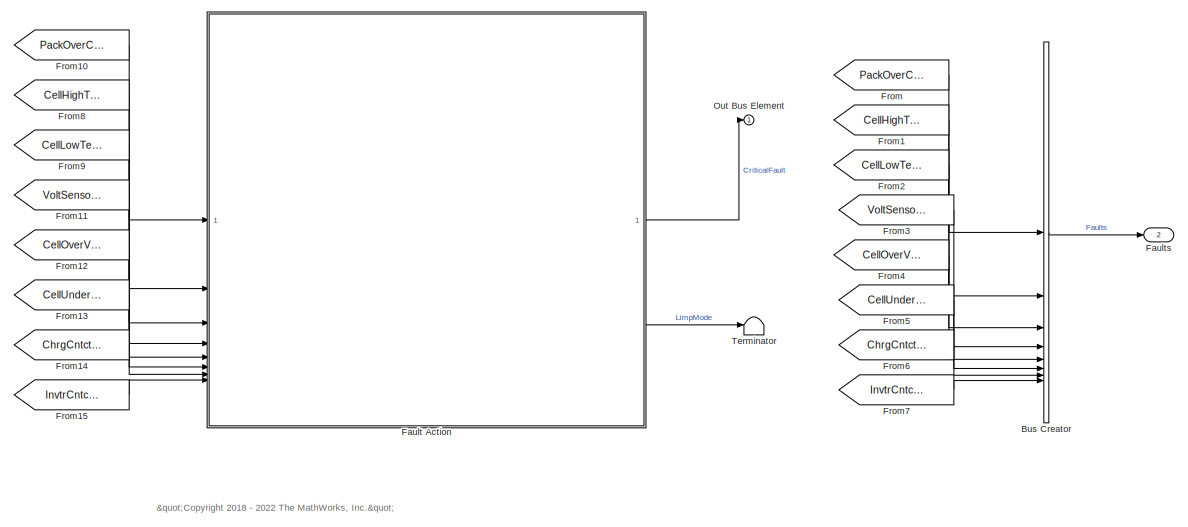
[diagram: root canvas - part 1/2, middle right region]
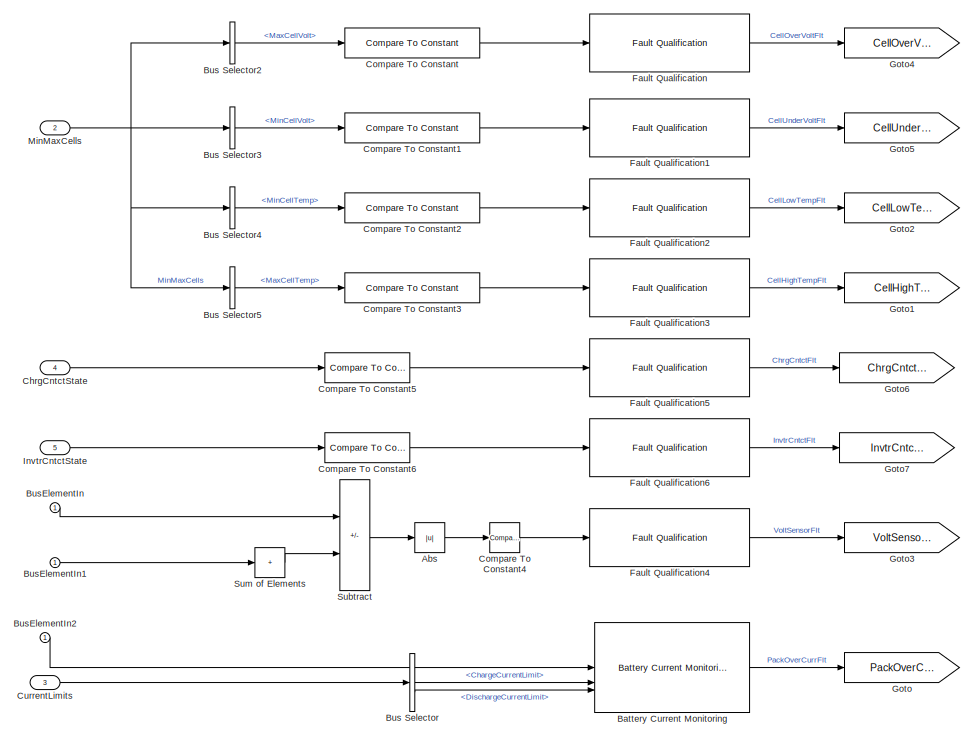
[diagram: root canvas - part 2/2, left side, full height]
MODEL slx_ff9845929416
KIND model
CONFIG AbsTol = auto
CONFIG EnableMultiTasking = off
CONFIG FixedStep = auto
CONFIG MaxStep = auto
CONFIG MinStep = auto
CONFIG RelTol = 1e-3
CONFIG SampleTimeConstraint = Unconstrained
CONFIG SolverName = VariableStepAuto
CONFIG StartTime = 0.0
CONFIG StopTime = 10.0
BLOCK [Abs] Abs
  SaturateOnIntegerOverflow = off
BLOCK [Reference] Battery Current Monitoring  REF=BatteryProtection/Battery Current
Monitoring
  LibrarySourceBlock = batt_sl_lib/Protection/Battery Current\nMonitoring
  SourceBlock = BatteryProtection/Battery Current\nMonitoring
  SourceType = Battery Current Monitoring
BLOCK [BusCreator] Bus Creator
  DisplayOption = bar
  InheritFromInputs = off
  Inputs = 8
  NonVirtualBus = on
  OutDataTypeStr = Bus: Faults
BLOCK [BusSelector] Bus Selector
  OutputSignals = ChargeCurrentLimit,DischargeCurrentLimit
BLOCK [BusSelector] Bus Selector2
  OutputSignals = MaxCellVolt
BLOCK [BusSelector] Bus Selector3
  OutputSignals = MinCellVolt
BLOCK [BusSelector] Bus Selector4
  OutputSignals = MinCellTemp
BLOCK [BusSelector] Bus Selector5
  OutputSignals = MaxCellTemp
BLOCK [Inport] BusElementIn
BLOCK [Inport] BusElementIn1
BLOCK [Inport] BusElementIn2
BLOCK [Inport] ChrgCntctState
  OutDataTypeStr = Enum: Contact
  Port = 4
BLOCK [Reference] Compare To Constant  REF=simulink/Logic and Bit
Operations/Compare
To Constant
  SourceBlock = simulink/Logic and Bit\nOperations/Compare\nTo Constant
  SourceType = Compare To Constant
BLOCK [Reference] Compare To Constant1  REF=simulink/Logic and Bit
Operations/Compare
To Constant
  SourceBlock = simulink/Logic and Bit\nOperations/Compare\nTo Constant
  SourceType = Compare To Constant
BLOCK [Reference] Compare To Constant2  REF=simulink/Logic and Bit
Operations/Compare
To Constant
  SourceBlock = simulink/Logic and Bit\nOperations/Compare\nTo Constant
  SourceType = Compare To Constant
BLOCK [Reference] Compare To Constant3  REF=simulink/Logic and Bit
Operations/Compare
To Constant
  SourceBlock = simulink/Logic and Bit\nOperations/Compare\nTo Constant
  SourceType = Compare To Constant
BLOCK [Reference] Compare To Constant4  REF=simulink/Logic and Bit
Operations/Compare
To Constant
  SourceBlock = simulink/Logic and Bit\nOperations/Compare\nTo Constant
  SourceType = Compare To Constant
BLOCK [Reference] Compare To Constant5  REF=simulink/Logic and Bit
Operations/Compare
To Constant
  SourceBlock = simulink/Logic and Bit\nOperations/Compare\nTo Constant
  SourceType = Compare To Constant
BLOCK [Reference] Compare To Constant6  REF=simulink/Logic and Bit
Operations/Compare
To Constant
  SourceBlock = simulink/Logic and Bit\nOperations/Compare\nTo Constant
  SourceType = Compare To Constant
BLOCK [Inport] CurrentLimits
  OutDataTypeStr = Bus: CurrentLimits
  Port = 3
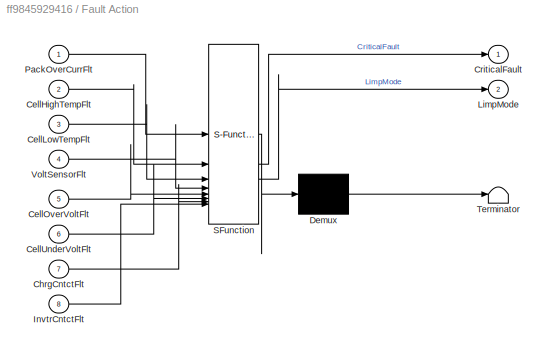
BLOCK [SubSystem] Fault Action
  ErrorFcn = Stateflow.Translate.translate
  PermitHierarchicalResolution = ExplicitOnly
  SFBlockType = Truth Table
  TreatAsAtomicUnit = on
BLOCK [Demux] Fault Action/ Demux 
  Outputs = 1
BLOCK [S-Function] Fault Action/ SFunction 
  EnableBusSupport = on
  FunctionName = sf_sfun
  PortCounts = [8 3]
  SFcnIsStateOwnerBlock = off
  SFunctionDeploymentMode = off
  Tag = Stateflow S-Function 2
BLOCK [Terminator] Fault Action/ Terminator 
BLOCK [Inport] Fault Action/CellHighTempFlt
  Port = 2
BLOCK [Inport] Fault Action/CellLowTempFlt
  Port = 3
BLOCK [Inport] Fault Action/CellOverVoltFlt
  Port = 5
BLOCK [Inport] Fault Action/CellUnderVoltFlt
  Port = 6
BLOCK [Inport] Fault Action/ChrgCntctFlt
  Port = 7
BLOCK [Outport] Fault Action/CriticalFault
  VectorParamsAs1DForOutWhenUnconnected = off
BLOCK [Inport] Fault Action/InvtrCntctFlt
  Port = 8
BLOCK [Outport] Fault Action/LimpMode
  Port = 2
BLOCK [Inport] Fault Action/PackOverCurrFlt
BLOCK [Inport] Fault Action/VoltSensorFlt
  Port = 4
BLOCK [Reference] Fault Qualification  REF=BatteryProtection/Fault Qualification
  LibrarySourceBlock = batt_sl_lib/Protection/Fault Qualification
  SourceBlock = BatteryProtection/Fault Qualification
  SourceType = Fault Qualification
BLOCK [Reference] Fault Qualification1  REF=BatteryProtection/Fault Qualification
  LibrarySourceBlock = batt_sl_lib/Protection/Fault Qualification
  SourceBlock = BatteryProtection/Fault Qualification
  SourceType = Fault Qualification
BLOCK [Reference] Fault Qualification2  REF=BatteryProtection/Fault Qualification
  LibrarySourceBlock = batt_sl_lib/Protection/Fault Qualification
  SourceBlock = BatteryProtection/Fault Qualification
  SourceType = Fault Qualification
BLOCK [Reference] Fault Qualification3  REF=BatteryProtection/Fault Qualification
  LibrarySourceBlock = batt_sl_lib/Protection/Fault Qualification
  SourceBlock = BatteryProtection/Fault Qualification
  SourceType = Fault Qualification
BLOCK [Reference] Fault Qualification4  REF=BatteryProtection/Fault Qualification
  LibrarySourceBlock = batt_sl_lib/Protection/Fault Qualification
  SourceBlock = BatteryProtection/Fault Qualification
  SourceType = Fault Qualification
BLOCK [Reference] Fault Qualification5  REF=BatteryProtection/Fault Qualification
  LibrarySourceBlock = batt_sl_lib/Protection/Fault Qualification
  SourceBlock = BatteryProtection/Fault Qualification
  SourceType = Fault Qualification
BLOCK [Reference] Fault Qualification6  REF=BatteryProtection/Fault Qualification
  LibrarySourceBlock = batt_sl_lib/Protection/Fault Qualification
  SourceBlock = BatteryProtection/Fault Qualification
  SourceType = Fault Qualification
BLOCK [Outport] Faults
  OutDataTypeStr = Bus: Faults
  Port = 2
BLOCK [From] From
  GotoTag = PackOverCurrFlt
BLOCK [From] From1
  GotoTag = CellHighTempFlt
BLOCK [From] From10
  GotoTag = PackOverCurrFlt
BLOCK [From] From11
  GotoTag = VoltSensorFlt
BLOCK [From] From12
  GotoTag = CellOverVoltFlt
BLOCK [From] From13
  GotoTag = CellUnderVoltFlt
BLOCK [From] From14
  GotoTag = ChrgCntctFlt
BLOCK [From] From15
  GotoTag = InvtrCntctFlt
BLOCK [From] From2
  GotoTag = CellLowTempFlt
BLOCK [From] From3
  GotoTag = VoltSensorFlt
BLOCK [From] From4
  GotoTag = CellOverVoltFlt
BLOCK [From] From5
  GotoTag = CellUnderVoltFlt
BLOCK [From] From6
  GotoTag = ChrgCntctFlt
BLOCK [From] From7
  GotoTag = InvtrCntctFlt
BLOCK [From] From8
  GotoTag = CellHighTempFlt
BLOCK [From] From9
  GotoTag = CellLowTempFlt
BLOCK [Goto] Goto
  GotoTag = PackOverCurrFlt
BLOCK [Goto] Goto1
  GotoTag = CellHighTempFlt
BLOCK [Goto] Goto2
  GotoTag = CellLowTempFlt
BLOCK [Goto] Goto3
  GotoTag = VoltSensorFlt
BLOCK [Goto] Goto4
  GotoTag = CellOverVoltFlt
BLOCK [Goto] Goto5
  GotoTag = CellUnderVoltFlt
BLOCK [Goto] Goto6
  GotoTag = ChrgCntctFlt
BLOCK [Goto] Goto7
  GotoTag = InvtrCntctFlt
BLOCK [Inport] InvtrCntctState
  OutDataTypeStr = Enum: Contact
  Port = 5
BLOCK [Inport] MinMaxCells
  OutDataTypeStr = Bus: Min_Max_Cells
  Port = 2
BLOCK [Outport] Out Bus Element
BLOCK [Sum] Subtract
  IconShape = rectangular
  Inputs = +-
BLOCK [Sum] Sum of Elements
  IconShape = rectangular
  Inputs = +
BLOCK [Terminator] Terminator
ANNOTATION (root): "<copyright redacted>
LINE Abs:1 -> Compare To Constant4:1
LINE Battery Current Monitoring:1 -> Goto:1
LINE Bus Creator:1 -> Faults:1
LINE Bus Selector2:1 -> Compare To Constant:1
LINE Bus Selector3:1 -> Compare To Constant1:1
LINE Bus Selector4:1 -> Compare To Constant2:1
LINE Bus Selector5:1 -> Compare To Constant3:1
LINE Bus Selector:1 -> Battery Current Monitoring:2
LINE Bus Selector:2 -> Battery Current Monitoring:3
LINE BusElementIn1:1 -> Sum of Elements:1
LINE BusElementIn2:1 -> Battery Current Monitoring:1
LINE BusElementIn:1 -> Subtract:1
LINE ChrgCntctState:1 -> Compare To Constant5:1
LINE Compare To Constant1:1 -> Fault Qualification1:1
LINE Compare To Constant2:1 -> Fault Qualification2:1
LINE Compare To Constant3:1 -> Fault Qualification3:1
LINE Compare To Constant4:1 -> Fault Qualification4:1
LINE Compare To Constant5:1 -> Fault Qualification5:1
LINE Compare To Constant6:1 -> Fault Qualification6:1
LINE Compare To Constant:1 -> Fault Qualification:1
LINE CurrentLimits:1 -> Bus Selector:1
LINE Fault Action:1 -> Out Bus Element:1
LINE Fault Action:2 -> Terminator:1
LINE Fault Qualification1:1 -> Goto5:1
LINE Fault Qualification2:1 -> Goto2:1
LINE Fault Qualification3:1 -> Goto1:1
LINE Fault Qualification4:1 -> Goto3:1
LINE Fault Qualification5:1 -> Goto6:1
LINE Fault Qualification6:1 -> Goto7:1
LINE Fault Qualification:1 -> Goto4:1
LINE From10:1 -> Fault Action:1
LINE From11:1 -> Fault Action:4
LINE From12:1 -> Fault Action:5
LINE From13:1 -> Fault Action:6
LINE From14:1 -> Fault Action:7
LINE From15:1 -> Fault Action:8
LINE From1:1 -> Bus Creator:2
LINE From2:1 -> Bus Creator:3
LINE From3:1 -> Bus Creator:4
LINE From4:1 -> Bus Creator:5
LINE From5:1 -> Bus Creator:6
LINE From6:1 -> Bus Creator:7
LINE From7:1 -> Bus Creator:8
LINE From8:1 -> Fault Action:2
LINE From9:1 -> Fault Action:3
LINE From:1 -> Bus Creator:1
LINE InvtrCntctState:1 -> Compare To Constant6:1
NET MinMaxCells:1 -> Bus Selector2:1, Bus Selector3:1, Bus Selector4:1, Bus Selector5:1
LINE Subtract:1 -> Abs:1
LINE Sum of Elements:1 -> Subtract:2
note: NET lines group one-source signal fan-out (src -> all destinations, sorted); 1:1 wires keep LINE
CHART Fault Action states=1 transitions=1
  STATE_LABEL 'tt_blk_kernel'
  STATE_LABEL 'SCRIPT:\nfunction [CriticalFault, LimpMode] = fcn(PackOverCurrFlt, CellHighTempFlt, CellLowTempFlt, VoltSensorFlt, CellOverVoltFlt, CellUnderVoltFlt, ChrgCntctFlt, InvtrCntctFlt)\n\naVarTruthTableCondition_1 = false;\naVarTruthTableCondition_2 = false;\n\n\n% Any Non-Critical Fault Active\n\naVarTruthTableCondition_1 = logical(PackOverCurrFlt || CellHighTempFlt || CellLowTempFlt || CellOverVoltFlt || CellU...<+561ch>'
CHART  states=0 transitions=0
